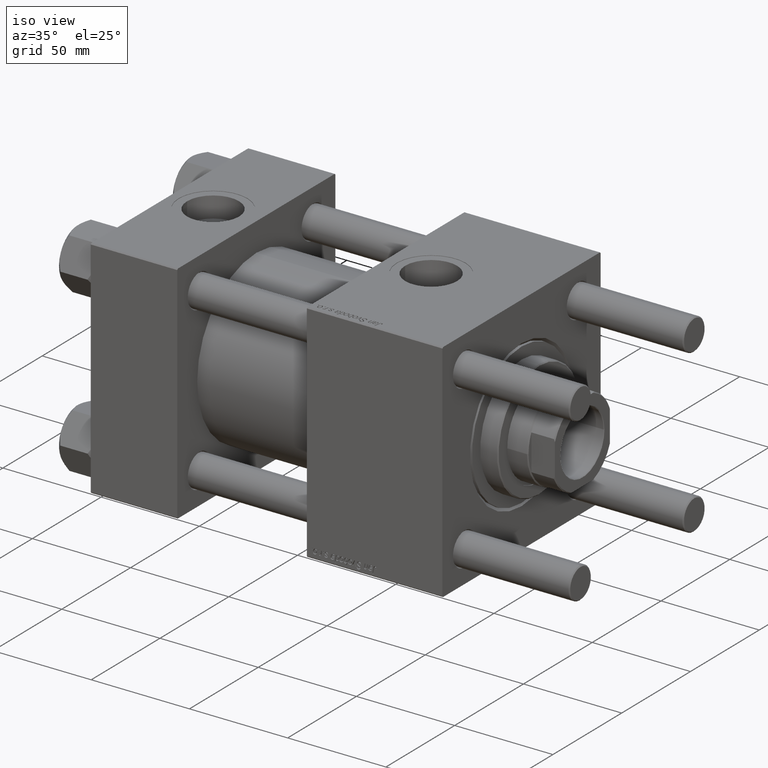
[diagram: clean part render]
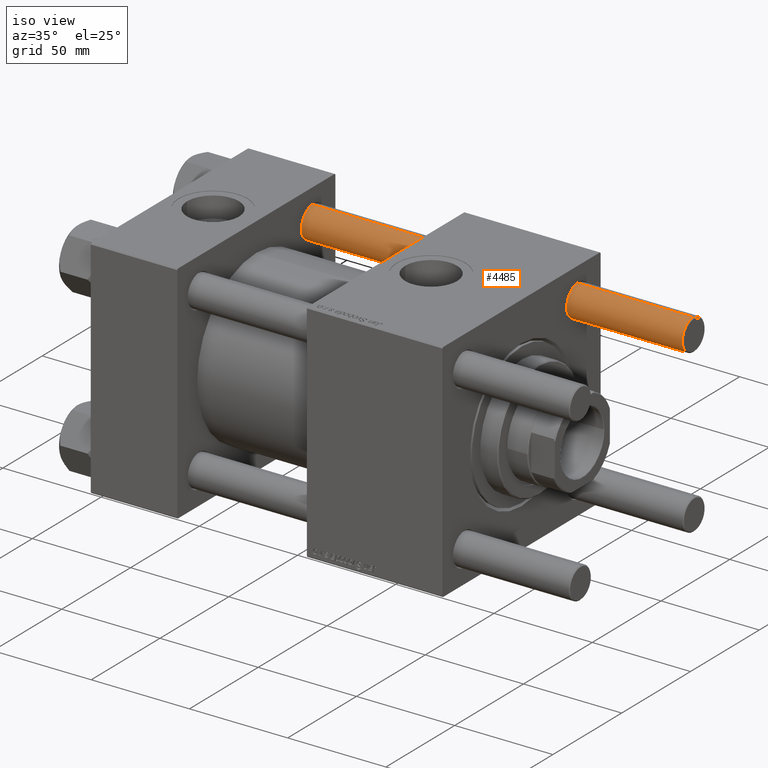
[diagram: same view with one face highlighted and labeled with its STEP entity id]
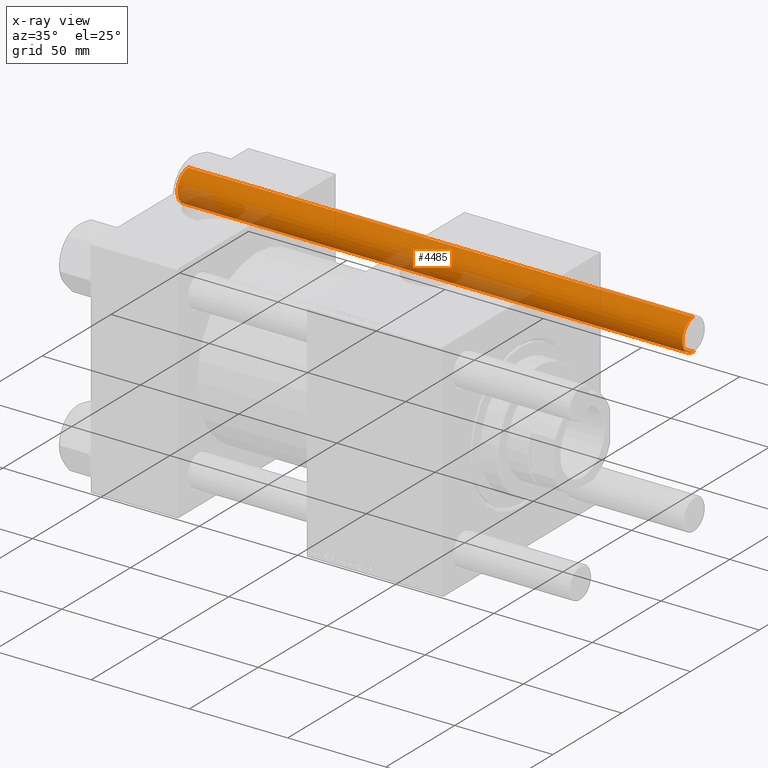
[diagram: x-ray of the same camera — body ghosted, the highlighted face saturated]
A machine part, iso view. The second image highlights one B-rep face of the part: STEP entity #4485.
The next image is the same camera in x-ray: the body ghosted, the highlighted face saturated — about 16% of this face is hidden behind the body in this view.
In plain terms, the highlighted cylindrical surface (edge-blend (fillet) strip) has radius 8 mm, axis along (1, -0, -0).
Its self-contained STEP definition (entity closure, byte-faithful):
#894 = EDGE_CURVE ( 'NONE', #41471, #7538, #52958, .T. ) ;
#1704 = EDGE_CURVE ( 'NONE', #6310, #41471, #17760, .T. ) ;
#2867 = EDGE_CURVE ( 'NONE', #35173, #7538, #17129, .T. ) ;
#4485 = ADVANCED_FACE ( 'NONE', ( #41861 ), #16731, .T. ) ;
#5355 = EDGE_CURVE ( 'NONE', #35173, #6310, #55702, .T. ) ;
#6310 = VERTEX_POINT ( 'NONE', #32783 ) ;
#6864 = DIRECTION ( 'NONE',  ( 1.000000000000000000, 0.000000000000000000, 0.000000000000000000 ) ) ;
#7135 = CARTESIAN_POINT ( 'NONE',  ( 0.000000000000000000, 0.000000000000000000, 257.4999999999999432 ) ) ;
#7538 = VERTEX_POINT ( 'NONE', #17299 ) ;
#8722 = VECTOR ( 'NONE', #26635, 1000.000000000000000 ) ;
#11527 = DIRECTION ( 'NONE',  ( -0.000000000000000000, -0.000000000000000000, -1.000000000000000000 ) ) ;
#12879 = CARTESIAN_POINT ( 'NONE',  ( -8.000000000000000000, 0.000000000000000000, 258.0000000000000000 ) ) ;
#16731 = CYLINDRICAL_SURFACE ( 'NONE', #20616, 8.000000000000000000 ) ;
#17129 = LINE ( 'NONE', #26348, #8722 ) ;
#17299 = CARTESIAN_POINT ( 'NONE',  ( 8.000000000000000000, 9.797174393178825657E-16, 0.4999999999999449329 ) ) ;
#17760 = LINE ( 'NONE', #12879, #28947 ) ;
#17831 = AXIS2_PLACEMENT_3D ( 'NONE', #7135, #33997, #37473 ) ;
#20616 = AXIS2_PLACEMENT_3D ( 'NONE', #47064, #11527, #38677 ) ;
#21601 = ORIENTED_EDGE ( 'NONE', *, *, #1704, .T. ) ;
#24187 = CARTESIAN_POINT ( 'NONE',  ( 0.000000000000000000, 0.000000000000000000, 0.4999999999999449329 ) ) ;
#26348 = CARTESIAN_POINT ( 'NONE',  ( 8.000000000000000000, 9.797174393178825657E-16, 258.0000000000000000 ) ) ;
#26635 = DIRECTION ( 'NONE',  ( -0.000000000000000000, -0.000000000000000000, -1.000000000000000000 ) ) ;
#26740 = ORIENTED_EDGE ( 'NONE', *, *, #5355, .T. ) ;
#28806 = DIRECTION ( 'NONE',  ( -0.000000000000000000, -0.000000000000000000, 1.000000000000000000 ) ) ;
#28947 = VECTOR ( 'NONE', #53597, 1000.000000000000000 ) ;
#29150 = CARTESIAN_POINT ( 'NONE',  ( 8.000000000000000000, 9.797174393178825657E-16, 257.4999999999999432 ) ) ;
#31680 = AXIS2_PLACEMENT_3D ( 'NONE', #24187, #28806, #6864 ) ;
#32783 = CARTESIAN_POINT ( 'NONE',  ( -8.000000000000000000, 0.000000000000000000, 257.4999999999999432 ) ) ;
#33665 = EDGE_LOOP ( 'NONE', ( #35574, #26740, #21601, #35918 ) ) ;
#33997 = DIRECTION ( 'NONE',  ( 0.000000000000000000, 0.000000000000000000, -1.000000000000000000 ) ) ;
#35173 = VERTEX_POINT ( 'NONE', #29150 ) ;
#35574 = ORIENTED_EDGE ( 'NONE', *, *, #2867, .F. ) ;
#35918 = ORIENTED_EDGE ( 'NONE', *, *, #894, .T. ) ;
#37473 = DIRECTION ( 'NONE',  ( 1.000000000000000000, 0.000000000000000000, 0.000000000000000000 ) ) ;
#38268 = CARTESIAN_POINT ( 'NONE',  ( -8.000000000000000000, 0.000000000000000000, 0.4999999999999449329 ) ) ;
#38677 = DIRECTION ( 'NONE',  ( -1.000000000000000000, 0.000000000000000000, 0.000000000000000000 ) ) ;
#41471 = VERTEX_POINT ( 'NONE', #38268 ) ;
#41861 = FACE_OUTER_BOUND ( 'NONE', #33665, .T. ) ;
#47064 = CARTESIAN_POINT ( 'NONE',  ( 0.000000000000000000, 0.000000000000000000, 258.0000000000000000 ) ) ;
#52958 = CIRCLE ( 'NONE', #31680, 8.000000000000000000 ) ;
#53597 = DIRECTION ( 'NONE',  ( -0.000000000000000000, -0.000000000000000000, -1.000000000000000000 ) ) ;
#55702 = CIRCLE ( 'NONE', #17831, 8.000000000000000000 ) ;